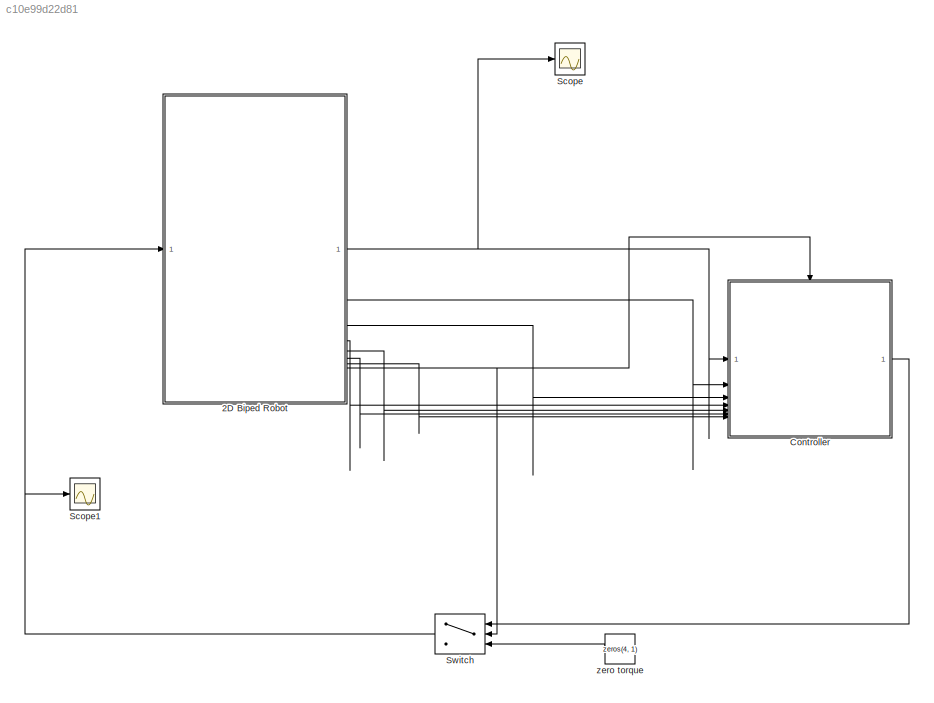
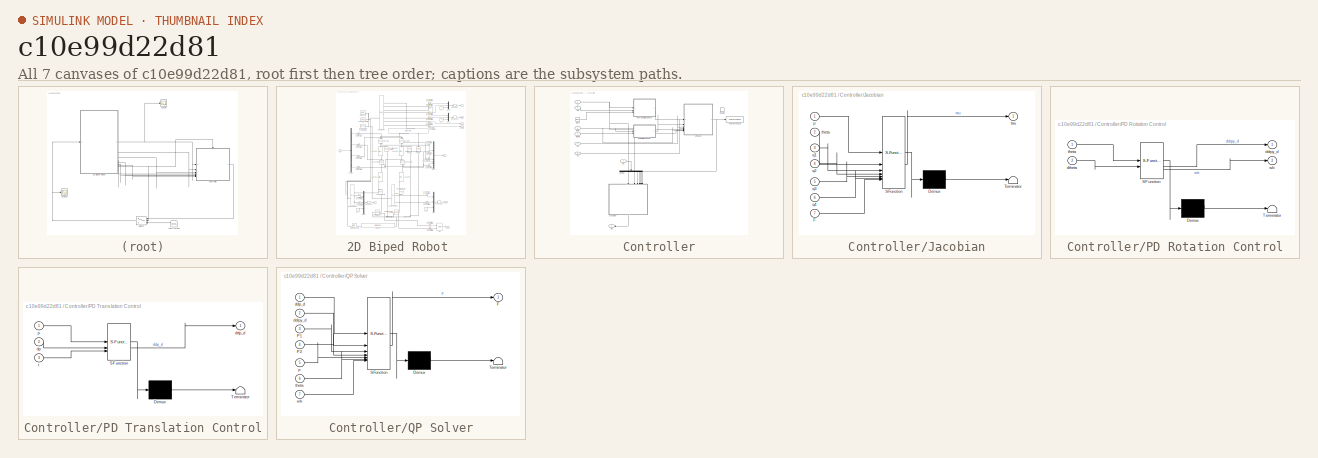
[diagram: thumbnail index - all 7 canvases of the model, root first then tree order]
MODEL slx_c10e99d22d81
KIND model
CONFIG AbsTol = 1e-3
CONFIG EnableMultiTasking = off
CONFIG FixedStep = 0.0005
CONFIG InitFcn = global params;\n\n% Mass and geometry\nparams.m = 0.25;\nparams.l = 0.22;\nparams.mb = 8;\nparams.a = 0.25;\nparams.b = 0.15;\nparams.g = [0; 9.81; 0];\n\n% Moment of inerita\nIl_zz = params.m * params.l^2 / 12;\nIb_xx = params.mb * params.a^2 / 12;\nIb_yy = params.mb * params.b^2 / 12;\nIb_zz = params.mb * (params.a^2 + params.b^2) / 12;\nparams.Ib = diag([Ib_xx Ib_yy Ib_zz]);\n\n% Spatial contact force parameter...<+337ch>
CONFIG MaxStep = auto
CONFIG MinStep = auto
CONFIG RelTol = 1e-3
CONFIG SampleTimeConstraint = Unconstrained
CONFIG SolverName = VariableStepAuto
CONFIG StartTime = 0.0
CONFIG StopTime = 0.5
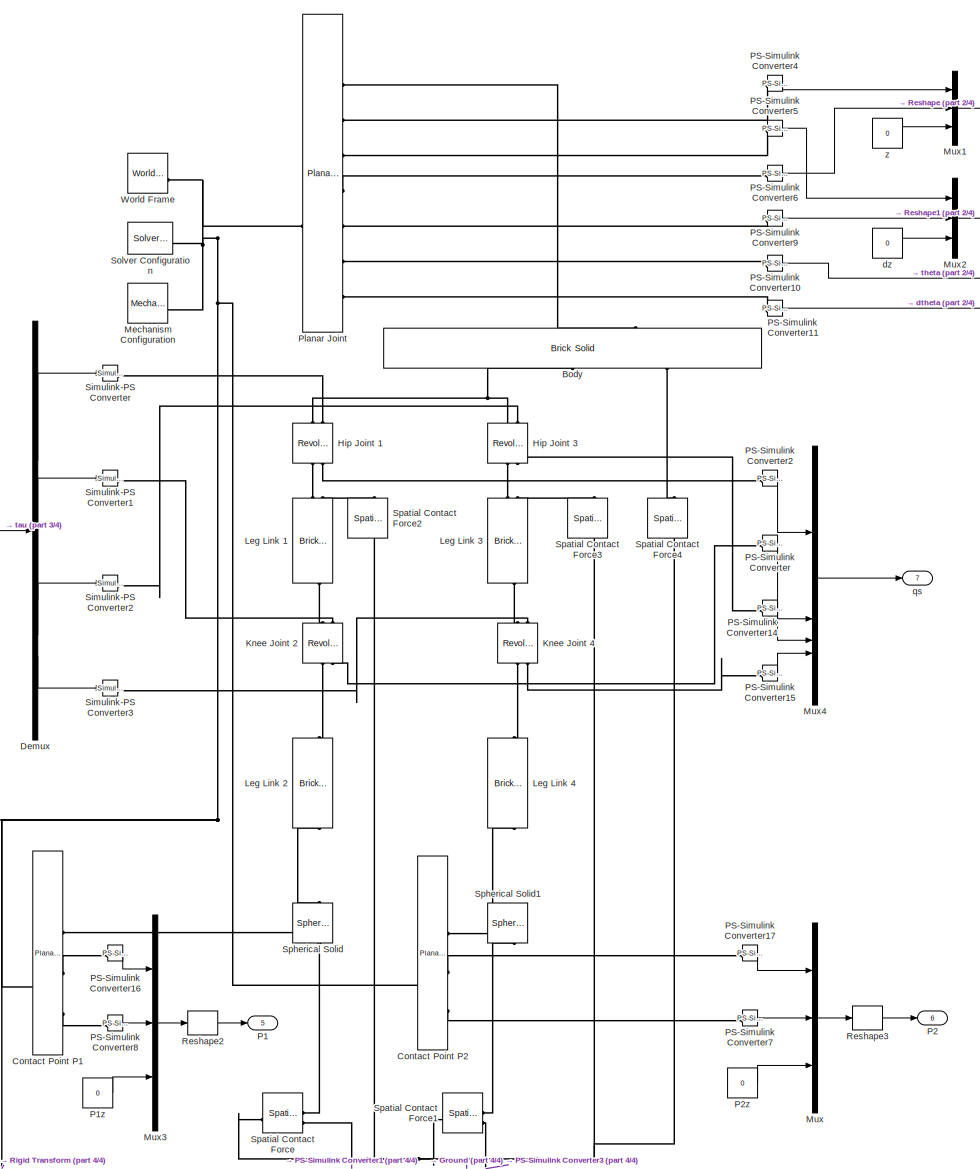
[diagram: 2D Biped Robot  - part 1/4, most of the canvas]
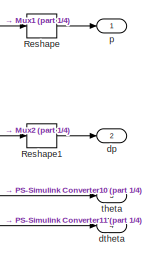
[diagram: 2D Biped Robot  - part 2/4, top right region]
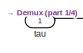
[diagram: 2D Biped Robot  - part 3/4, middle left region]
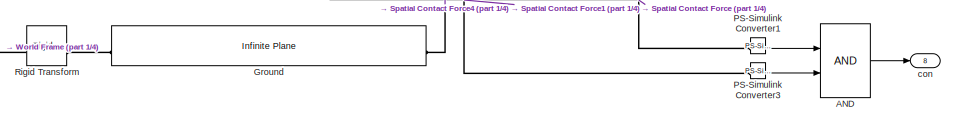
[diagram: 2D Biped Robot  - part 4/4, full width, bottom band]
BLOCK [SubSystem] 2D Biped Robot 
BLOCK [Logic] 2D Biped Robot /AND
  AllPortsSameDT = off
  IconShape = distinctive
  OutDataTypeStr = boolean
BLOCK [Reference] 2D Biped Robot /Body  REF=sm_lib/Body Elements/Brick Solid
  NameLocation = right
  SourceBlock = sm_lib/Body Elements/Brick Solid
  SourceType = Brick Solid
BLOCK [Reference] 2D Biped Robot /Contact Point P1  REF=sm_lib/Joints/Planar Joint
  SourceBlock = sm_lib/Joints/Planar Joint
  SourceType = Planar Joint
BLOCK [Reference] 2D Biped Robot /Contact Point P2  REF=sm_lib/Joints/Planar Joint
  SourceBlock = sm_lib/Joints/Planar Joint
  SourceType = Planar Joint
BLOCK [Demux] 2D Biped Robot /Demux
BLOCK [Reference] 2D Biped Robot /Ground  REF=sm_lib/Curves and Surfaces/Infinite Plane
  SourceBlock = sm_lib/Curves and Surfaces/Infinite Plane
  SourceType = Infinite Plane
BLOCK [Reference] 2D Biped Robot /Hip Joint 1  REF=sm_lib/Joints/Revolute Joint
  NameLocation = left
  SourceBlock = sm_lib/Joints/Revolute Joint
  SourceType = Revolute Joint
BLOCK [Reference] 2D Biped Robot /Hip Joint 3  REF=sm_lib/Joints/Revolute Joint
  NameLocation = left
  SourceBlock = sm_lib/Joints/Revolute Joint
  SourceType = Revolute Joint
BLOCK [Reference] 2D Biped Robot /Knee Joint 2  REF=sm_lib/Joints/Revolute Joint
  NameLocation = left
  SourceBlock = sm_lib/Joints/Revolute Joint
  SourceType = Revolute Joint
BLOCK [Reference] 2D Biped Robot /Knee Joint 4  REF=sm_lib/Joints/Revolute Joint
  NameLocation = left
  SourceBlock = sm_lib/Joints/Revolute Joint
  SourceType = Revolute Joint
BLOCK [Reference] 2D Biped Robot /Leg Link 1  REF=sm_lib/Body Elements/Brick Solid
  NameLocation = left
  SourceBlock = sm_lib/Body Elements/Brick Solid
  SourceType = Brick Solid
BLOCK [Reference] 2D Biped Robot /Leg Link 2  REF=sm_lib/Body Elements/Brick Solid
  NameLocation = left
  SourceBlock = sm_lib/Body Elements/Brick Solid
  SourceType = Brick Solid
BLOCK [Reference] 2D Biped Robot /Leg Link 3  REF=sm_lib/Body Elements/Brick Solid
  NameLocation = left
  SourceBlock = sm_lib/Body Elements/Brick Solid
  SourceType = Brick Solid
BLOCK [Reference] 2D Biped Robot /Leg Link 4  REF=sm_lib/Body Elements/Brick Solid
  NameLocation = left
  SourceBlock = sm_lib/Body Elements/Brick Solid
  SourceType = Brick Solid
BLOCK [Reference] 2D Biped Robot /Mechanism Configuration  REF=sm_lib/Utilities/Mechanism
Configuration
  SourceBlock = sm_lib/Utilities/Mechanism\nConfiguration
  SourceType = Mechanism\nConfiguration
BLOCK [Mux] 2D Biped Robot /Mux
  DisplayOption = bar
  Inputs = 3
BLOCK [Mux] 2D Biped Robot /Mux1
  DisplayOption = bar
  Inputs = 3
BLOCK [Mux] 2D Biped Robot /Mux2
  DisplayOption = bar
  Inputs = 3
BLOCK [Mux] 2D Biped Robot /Mux3
  DisplayOption = bar
  Inputs = 3
BLOCK [Mux] 2D Biped Robot /Mux4
  DisplayOption = bar
BLOCK [Outport] 2D Biped Robot /P1
  Port = 5
BLOCK [Constant] 2D Biped Robot /P1z
  Value = 0
BLOCK [Outport] 2D Biped Robot /P2
  Port = 6
BLOCK [Constant] 2D Biped Robot /P2z
  Value = 0
BLOCK [Reference] 2D Biped Robot /PS-Simulink Converter  REF=nesl_utility/PS-Simulink
Converter
  SourceBlock = nesl_utility/PS-Simulink\nConverter
  SourceType = PS-Simulink\nConverter
BLOCK [Reference] 2D Biped Robot /PS-Simulink Converter1  REF=nesl_utility/PS-Simulink
Converter
  SourceBlock = nesl_utility/PS-Simulink\nConverter
  SourceType = PS-Simulink\nConverter
BLOCK [Reference] 2D Biped Robot /PS-Simulink Converter10  REF=nesl_utility/PS-Simulink
Converter
  SourceBlock = nesl_utility/PS-Simulink\nConverter
  SourceType = PS-Simulink\nConverter
BLOCK [Reference] 2D Biped Robot /PS-Simulink Converter11  REF=nesl_utility/PS-Simulink
Converter
  SourceBlock = nesl_utility/PS-Simulink\nConverter
  SourceType = PS-Simulink\nConverter
BLOCK [Reference] 2D Biped Robot /PS-Simulink Converter14  REF=nesl_utility/PS-Simulink
Converter
  SourceBlock = nesl_utility/PS-Simulink\nConverter
  SourceType = PS-Simulink\nConverter
BLOCK [Reference] 2D Biped Robot /PS-Simulink Converter15  REF=nesl_utility/PS-Simulink
Converter
  SourceBlock = nesl_utility/PS-Simulink\nConverter
  SourceType = PS-Simulink\nConverter
BLOCK [Reference] 2D Biped Robot /PS-Simulink Converter16  REF=nesl_utility/PS-Simulink
Converter
  SourceBlock = nesl_utility/PS-Simulink\nConverter
  SourceType = PS-Simulink\nConverter
BLOCK [Reference] 2D Biped Robot /PS-Simulink Converter17  REF=nesl_utility/PS-Simulink
Converter
  SourceBlock = nesl_utility/PS-Simulink\nConverter
  SourceType = PS-Simulink\nConverter
BLOCK [Reference] 2D Biped Robot /PS-Simulink Converter2  REF=nesl_utility/PS-Simulink
Converter
  SourceBlock = nesl_utility/PS-Simulink\nConverter
  SourceType = PS-Simulink\nConverter
BLOCK [Reference] 2D Biped Robot /PS-Simulink Converter3  REF=nesl_utility/PS-Simulink
Converter
  SourceBlock = nesl_utility/PS-Simulink\nConverter
  SourceType = PS-Simulink\nConverter
BLOCK [Reference] 2D Biped Robot /PS-Simulink Converter4  REF=nesl_utility/PS-Simulink
Converter
  SourceBlock = nesl_utility/PS-Simulink\nConverter
  SourceType = PS-Simulink\nConverter
BLOCK [Reference] 2D Biped Robot /PS-Simulink Converter5  REF=nesl_utility/PS-Simulink
Converter
  SourceBlock = nesl_utility/PS-Simulink\nConverter
  SourceType = PS-Simulink\nConverter
BLOCK [Reference] 2D Biped Robot /PS-Simulink Converter6  REF=nesl_utility/PS-Simulink
Converter
  SourceBlock = nesl_utility/PS-Simulink\nConverter
  SourceType = PS-Simulink\nConverter
BLOCK [Reference] 2D Biped Robot /PS-Simulink Converter7  REF=nesl_utility/PS-Simulink
Converter
  SourceBlock = nesl_utility/PS-Simulink\nConverter
  SourceType = PS-Simulink\nConverter
BLOCK [Reference] 2D Biped Robot /PS-Simulink Converter8  REF=nesl_utility/PS-Simulink
Converter
  SourceBlock = nesl_utility/PS-Simulink\nConverter
  SourceType = PS-Simulink\nConverter
BLOCK [Reference] 2D Biped Robot /PS-Simulink Converter9  REF=nesl_utility/PS-Simulink
Converter
  SourceBlock = nesl_utility/PS-Simulink\nConverter
  SourceType = PS-Simulink\nConverter
BLOCK [Reference] 2D Biped Robot /Planar Joint  REF=sm_lib/Joints/Planar Joint
  SourceBlock = sm_lib/Joints/Planar Joint
  SourceType = Planar Joint
BLOCK [Reshape] 2D Biped Robot /Reshape
  OutputDimensionality = Customize
  OutputDimensions = [3,1]
BLOCK [Reshape] 2D Biped Robot /Reshape1
  OutputDimensionality = Customize
  OutputDimensions = [3,1]
BLOCK [Reshape] 2D Biped Robot /Reshape2
  OutputDimensionality = Customize
  OutputDimensions = [3,1]
BLOCK [Reshape] 2D Biped Robot /Reshape3
  OutputDimensionality = Customize
  OutputDimensions = [3,1]
BLOCK [Reference] 2D Biped Robot /Rigid Transform  REF=sm_lib/Frames and
Transforms/Rigid
Transform
  SourceBlock = sm_lib/Frames and\nTransforms/Rigid\nTransform
  SourceType = Rigid\nTransform
BLOCK [Reference] 2D Biped Robot /Simulink-PS Converter  REF=nesl_utility/Simulink-PS
Converter
  SourceBlock = nesl_utility/Simulink-PS\nConverter
  SourceType = Simulink-PS\nConverter
BLOCK [Reference] 2D Biped Robot /Simulink-PS Converter1  REF=nesl_utility/Simulink-PS
Converter
  SourceBlock = nesl_utility/Simulink-PS\nConverter
  SourceType = Simulink-PS\nConverter
BLOCK [Reference] 2D Biped Robot /Simulink-PS Converter2  REF=nesl_utility/Simulink-PS
Converter
  SourceBlock = nesl_utility/Simulink-PS\nConverter
  SourceType = Simulink-PS\nConverter
BLOCK [Reference] 2D Biped Robot /Simulink-PS Converter3  REF=nesl_utility/Simulink-PS
Converter
  SourceBlock = nesl_utility/Simulink-PS\nConverter
  SourceType = Simulink-PS\nConverter
BLOCK [Reference] 2D Biped Robot /Solver Configuration  REF=nesl_utility/Solver
Configuration
  SourceBlock = nesl_utility/Solver\nConfiguration
  SourceType = Solver\nConfiguration
BLOCK [Reference] 2D Biped Robot /Spatial Contact Force  REF=sm_lib/Forces and
Torques/Spatial
Contact Force
  SourceBlock = sm_lib/Forces and\nTorques/Spatial\nContact Force
  SourceType = Spatial\nContact Force
BLOCK [Reference] 2D Biped Robot /Spatial Contact Force1  REF=sm_lib/Forces and
Torques/Spatial
Contact Force
  SourceBlock = sm_lib/Forces and\nTorques/Spatial\nContact Force
  SourceType = Spatial\nContact Force
BLOCK [Reference] 2D Biped Robot /Spatial Contact Force2  REF=sm_lib/Forces and
Torques/Spatial
Contact Force
  NameLocation = right
  SourceBlock = sm_lib/Forces and\nTorques/Spatial\nContact Force
  SourceType = Spatial\nContact Force
BLOCK [Reference] 2D Biped Robot /Spatial Contact Force3  REF=sm_lib/Forces and
Torques/Spatial
Contact Force
  NameLocation = right
  SourceBlock = sm_lib/Forces and\nTorques/Spatial\nContact Force
  SourceType = Spatial\nContact Force
BLOCK [Reference] 2D Biped Robot /Spatial Contact Force4  REF=sm_lib/Forces and
Torques/Spatial
Contact Force
  NameLocation = right
  SourceBlock = sm_lib/Forces and\nTorques/Spatial\nContact Force
  SourceType = Spatial\nContact Force
BLOCK [Reference] 2D Biped Robot /Spherical Solid  REF=sm_lib/Body Elements/Spherical Solid
  NameLocation = right
  SourceBlock = sm_lib/Body Elements/Spherical Solid
  SourceType = Spherical Solid
BLOCK [Reference] 2D Biped Robot /Spherical Solid1  REF=sm_lib/Body Elements/Spherical Solid
  NameLocation = right
  SourceBlock = sm_lib/Body Elements/Spherical Solid
  SourceType = Spherical Solid
BLOCK [Reference] 2D Biped Robot /World Frame  REF=sm_lib/Frames and
Transforms/World Frame
  SourceBlock = sm_lib/Frames and\nTransforms/World Frame
  SourceType = World Frame
BLOCK [Outport] 2D Biped Robot /con
  Port = 8
BLOCK [Outport] 2D Biped Robot /dp
  Port = 2
BLOCK [Outport] 2D Biped Robot /dtheta
  Port = 4
BLOCK [Constant] 2D Biped Robot /dz
  Value = 0
BLOCK [Outport] 2D Biped Robot /p
BLOCK [Outport] 2D Biped Robot /qs
  Port = 7
BLOCK [Inport] 2D Biped Robot /tau
BLOCK [Outport] 2D Biped Robot /theta
  Port = 3
BLOCK [Constant] 2D Biped Robot /z
  Value = 0
BLOCK [SubSystem] Controller
BLOCK [Clock] Controller/Clock
BLOCK [Demux] Controller/Demux
  NameLocation = left
BLOCK [EnablePort] Controller/Enable
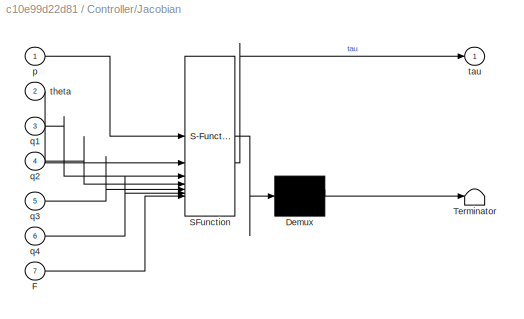
BLOCK [SubSystem] Controller/Jacobian
  ErrorFcn = Stateflow.Translate.translate
  NameLocation = left
  PermitHierarchicalResolution = ExplicitOnly
  SFBlockType = MATLAB Function
  TreatAsAtomicUnit = on
BLOCK [Demux] Controller/Jacobian/ Demux 
  Outputs = 1
BLOCK [S-Function] Controller/Jacobian/ SFunction 
  EnableBusSupport = on
  FunctionName = sf_sfun
  PortCounts = [7 2]
  SFcnIsStateOwnerBlock = off
  SFunctionDeploymentMode = off
  Tag = Stateflow S-Function 5
BLOCK [Terminator] Controller/Jacobian/ Terminator 
BLOCK [Inport] Controller/Jacobian/F
  Port = 7
BLOCK [Inport] Controller/Jacobian/p
BLOCK [Inport] Controller/Jacobian/q1
  Port = 3
BLOCK [Inport] Controller/Jacobian/q2
  Port = 4
BLOCK [Inport] Controller/Jacobian/q3
  Port = 5
BLOCK [Inport] Controller/Jacobian/q4
  Port = 6
BLOCK [Outport] Controller/Jacobian/tau
BLOCK [Inport] Controller/Jacobian/theta
  Port = 2
BLOCK [Inport] Controller/P1
  Port = 5
BLOCK [Inport] Controller/P2
  Port = 6
BLOCK [SubSystem] Controller/PD Rotation Control
  ErrorFcn = Stateflow.Translate.translate
  PermitHierarchicalResolution = ExplicitOnly
  SFBlockType = MATLAB Function
  TreatAsAtomicUnit = on
BLOCK [Demux] Controller/PD Rotation Control/ Demux 
  Outputs = 1
BLOCK [S-Function] Controller/PD Rotation Control/ SFunction 
  EnableBusSupport = on
  FunctionName = sf_sfun
  PortCounts = [2 3]
  SFcnIsStateOwnerBlock = off
  SFunctionDeploymentMode = off
  Tag = Stateflow S-Function 1
BLOCK [Terminator] Controller/PD Rotation Control/ Terminator 
BLOCK [Outport] Controller/PD Rotation Control/ddrpy_d
BLOCK [Inport] Controller/PD Rotation Control/dtheta
  Port = 2
BLOCK [Inport] Controller/PD Rotation Control/theta
BLOCK [Outport] Controller/PD Rotation Control/wb
  Port = 2
BLOCK [SubSystem] Controller/PD Translation Control
  ErrorFcn = Stateflow.Translate.translate
  PermitHierarchicalResolution = ExplicitOnly
  SFBlockType = MATLAB Function
  TreatAsAtomicUnit = on
BLOCK [Demux] Controller/PD Translation Control/ Demux 
  Outputs = 1
BLOCK [S-Function] Controller/PD Translation Control/ SFunction 
  EnableBusSupport = on
  FunctionName = sf_sfun
  PortCounts = [3 2]
  SFcnIsStateOwnerBlock = off
  SFunctionDeploymentMode = off
  Tag = Stateflow S-Function 6
BLOCK [Terminator] Controller/PD Translation Control/ Terminator 
BLOCK [Outport] Controller/PD Translation Control/ddp_d
BLOCK [Inport] Controller/PD Translation Control/dp
  Port = 2
BLOCK [Inport] Controller/PD Translation Control/p
BLOCK [Inport] Controller/PD Translation Control/t
  Port = 3
BLOCK [SubSystem] Controller/QP Solver
  ErrorFcn = Stateflow.Translate.translate
  PermitHierarchicalResolution = ExplicitOnly
  SFBlockType = MATLAB Function
  TreatAsAtomicUnit = on
BLOCK [Demux] Controller/QP Solver/ Demux 
  Outputs = 1
BLOCK [S-Function] Controller/QP Solver/ SFunction 
  EnableBusSupport = on
  FunctionName = sf_sfun
  PortCounts = [7 2]
  SFcnIsStateOwnerBlock = off
  SFunctionDeploymentMode = off
  Tag = Stateflow S-Function 3
BLOCK [Terminator] Controller/QP Solver/ Terminator 
BLOCK [Outport] Controller/QP Solver/F
BLOCK [Inport] Controller/QP Solver/P1
  Port = 3
BLOCK [Inport] Controller/QP Solver/P2
  Port = 4
BLOCK [Inport] Controller/QP Solver/ddp_d
BLOCK [Inport] Controller/QP Solver/ddrpy_d
  Port = 2
BLOCK [Inport] Controller/QP Solver/p
  Port = 5
BLOCK [Inport] Controller/QP Solver/theta
  Port = 6
BLOCK [Inport] Controller/QP Solver/wb
  Port = 7
BLOCK [ToWorkspace] Controller/To Workspace
  FixptAsFi = on
  MaxDataPoints = inf
  SampleTime = -1
  SaveFormat = Timeseries
  VariableName = F
BLOCK [Inport] Controller/dp
  Port = 2
BLOCK [Inport] Controller/dtheta
  Port = 4
BLOCK [Inport] Controller/p
BLOCK [Inport] Controller/qs
  Port = 7
BLOCK [Outport] Controller/tau
  NameLocation = top
BLOCK [Inport] Controller/theta
  Port = 3
BLOCK [Scope] Scope
  Floating = off
  NumInputPorts = 1
  ScopeSpecificationString = Simulink.scopes.TimeScopeBlockCfg('CurrentConfiguration', extmgr.ConfigurationSet(extmgr.Configuration('Core','General UI',true),extmgr.Configuration('Core','Source UI',true),extmgr.Configuration('Sources','WiredSimulink',true,'DataLoggingVariableName','ScopeData1'),extmgr.Configuration('Visuals','Time Domain',true,'SerializedDisplays',{struct('MinYLimReal','0','MaxYLimReal','0.6','YLabelReal','',...<+1486ch>
BLOCK [Scope] Scope1
  Floating = off
  NumInputPorts = 1
  ScopeSpecificationString = Simulink.scopes.TimeScopeBlockCfg('CurrentConfiguration', extmgr.ConfigurationSet(extmgr.Configuration('Core','General UI',true),extmgr.Configuration('Core','Source UI',true),extmgr.Configuration('Sources','WiredSimulink',true,'DataLoggingVariableName','ScopeData1'),extmgr.Configuration('Visuals','Time Domain',true,'SerializedDisplays',{struct('MinYLimReal','-153.71109','MaxYLimReal','97.60064','Y...<+1663ch>
BLOCK [Switch] Switch
  Criteria = u2 ~= 0
  InputSameDT = off
  NameLocation = top
  SaturateOnIntegerOverflow = off
BLOCK [Constant] zero torque
  NameLocation = top
  Value = zeros(4, 1)
LINE 2D Biped Robot /AND:1 -> 2D Biped Robot /con:1
LINE 2D Biped Robot /Demux:1 -> 2D Biped Robot /Simulink-PS Converter:1
LINE 2D Biped Robot /Demux:2 -> 2D Biped Robot /Simulink-PS Converter1:1
LINE 2D Biped Robot /Demux:3 -> 2D Biped Robot /Simulink-PS Converter2:1
LINE 2D Biped Robot /Demux:4 -> 2D Biped Robot /Simulink-PS Converter3:1
LINE 2D Biped Robot /Mux1:1 -> 2D Biped Robot /Reshape:1
LINE 2D Biped Robot /Mux2:1 -> 2D Biped Robot /Reshape1:1
LINE 2D Biped Robot /Mux3:1 -> 2D Biped Robot /Reshape2:1
LINE 2D Biped Robot /Mux4:1 -> 2D Biped Robot /qs:1
LINE 2D Biped Robot /Mux:1 -> 2D Biped Robot /Reshape3:1
LINE 2D Biped Robot /P1z:1 -> 2D Biped Robot /Mux3:3
LINE 2D Biped Robot /P2z:1 -> 2D Biped Robot /Mux:3
LINE 2D Biped Robot /PS-Simulink Converter10:1 -> 2D Biped Robot /theta:1
LINE 2D Biped Robot /PS-Simulink Converter11:1 -> 2D Biped Robot /dtheta:1
LINE 2D Biped Robot /PS-Simulink Converter14:1 -> 2D Biped Robot /Mux4:3
LINE 2D Biped Robot /PS-Simulink Converter15:1 -> 2D Biped Robot /Mux4:4
LINE 2D Biped Robot /PS-Simulink Converter16:1 -> 2D Biped Robot /Mux3:1
LINE 2D Biped Robot /PS-Simulink Converter17:1 -> 2D Biped Robot /Mux:1
LINE 2D Biped Robot /PS-Simulink Converter1:1 -> 2D Biped Robot /AND:1
LINE 2D Biped Robot /PS-Simulink Converter2:1 -> 2D Biped Robot /Mux4:1
LINE 2D Biped Robot /PS-Simulink Converter3:1 -> 2D Biped Robot /AND:2
LINE 2D Biped Robot /PS-Simulink Converter4:1 -> 2D Biped Robot /Mux1:1
LINE 2D Biped Robot /PS-Simulink Converter5:1 -> 2D Biped Robot /Mux2:1
LINE 2D Biped Robot /PS-Simulink Converter6:1 -> 2D Biped Robot /Mux1:2
LINE 2D Biped Robot /PS-Simulink Converter7:1 -> 2D Biped Robot /Mux:2
LINE 2D Biped Robot /PS-Simulink Converter8:1 -> 2D Biped Robot /Mux3:2
LINE 2D Biped Robot /PS-Simulink Converter9:1 -> 2D Biped Robot /Mux2:2
LINE 2D Biped Robot /PS-Simulink Converter:1 -> 2D Biped Robot /Mux4:2
LINE 2D Biped Robot /Reshape1:1 -> 2D Biped Robot /dp:1
LINE 2D Biped Robot /Reshape2:1 -> 2D Biped Robot /P1:1
LINE 2D Biped Robot /Reshape3:1 -> 2D Biped Robot /P2:1
LINE 2D Biped Robot /Reshape:1 -> 2D Biped Robot /p:1
LINE 2D Biped Robot /dz:1 -> 2D Biped Robot /Mux2:3
LINE 2D Biped Robot /tau:1 -> 2D Biped Robot /Demux:1
LINE 2D Biped Robot /z:1 -> 2D Biped Robot /Mux1:3
NET 2D Biped Robot :1 -> Controller:1, Scope:1
LINE 2D Biped Robot :2 -> Controller:2
LINE 2D Biped Robot :3 -> Controller:3
LINE 2D Biped Robot :4 -> Controller:4
LINE 2D Biped Robot :5 -> Controller:5
LINE 2D Biped Robot :6 -> Controller:6
LINE 2D Biped Robot :7 -> Controller:7
NET 2D Biped Robot :8 -> Controller:enable, Switch:2
LINE Controller/Clock:1 -> Controller/PD Translation Control:3
LINE Controller/Demux:1 -> Controller/Jacobian:3
LINE Controller/Demux:2 -> Controller/Jacobian:4
LINE Controller/Demux:3 -> Controller/Jacobian:5
LINE Controller/Demux:4 -> Controller/Jacobian:6
LINE Controller/Jacobian:1 -> Controller/tau:1
LINE Controller/P1:1 -> Controller/QP Solver:3
LINE Controller/P2:1 -> Controller/QP Solver:4
LINE Controller/PD Rotation Control:1 -> Controller/QP Solver:2
LINE Controller/PD Rotation Control:2 -> Controller/QP Solver:7
LINE Controller/PD Translation Control:1 -> Controller/QP Solver:1
NET Controller/QP Solver:1 -> Controller/Jacobian:7, Controller/To Workspace:1
LINE Controller/dp:1 -> Controller/PD Translation Control:2
LINE Controller/dtheta:1 -> Controller/PD Rotation Control:2
NET Controller/p:1 -> Controller/Jacobian:1, Controller/PD Translation Control:1, Controller/QP Solver:5
LINE Controller/qs:1 -> Controller/Demux:1
NET Controller/theta:1 -> Controller/Jacobian:2, Controller/PD Rotation Control:1, Controller/QP Solver:6
LINE Controller:1 -> Switch:1
NET Switch:1 -> 2D Biped Robot :1, Scope1:1
LINE zero torque:1 -> Switch:3
PNET net1: 2D Biped Robot /Body:LConn1 -- 2D Biped Robot /Hip Joint 1:LConn1 -- 2D Biped Robot /Hip Joint 3:LConn1
PLINE 2D Biped Robot /Body:LConn2 -- 2D Biped Robot /Spatial Contact Force4:RConn1
PLINE 2D Biped Robot /Body:RConn1 -- 2D Biped Robot /Planar Joint:RConn1
PNET net2: 2D Biped Robot /Contact Point P1:LConn1 -- 2D Biped Robot /Contact Point P2:LConn1 -- 2D Biped Robot /Mechanism Configuration:RConn1 -- 2D Biped Robot /Planar Joint:LConn1 -- 2D Biped Robot /Rigid Transform:LConn1 -- 2D Biped Robot /Solver Configuration:RConn1 -- 2D Biped Robot /World Frame:RConn1
PNET net3: 2D Biped Robot /Contact Point P1:RConn1 -- 2D Biped Robot /Leg Link 2:RConn1 -- 2D Biped Robot /Spherical Solid:RConn1
PLINE 2D Biped Robot /Contact Point P1:RConn2 -- 2D Biped Robot /PS-Simulink Converter16:LConn1
PLINE 2D Biped Robot /Contact Point P1:RConn3 -- 2D Biped Robot /PS-Simulink Converter8:LConn1
PNET net4: 2D Biped Robot /Contact Point P2:RConn1 -- 2D Biped Robot /Leg Link 4:RConn1 -- 2D Biped Robot /Spherical Solid1:RConn1
PLINE 2D Biped Robot /Contact Point P2:RConn2 -- 2D Biped Robot /PS-Simulink Converter17:LConn1
PLINE 2D Biped Robot /Contact Point P2:RConn3 -- 2D Biped Robot /PS-Simulink Converter7:LConn1
PLINE 2D Biped Robot /Ground:LConn1 -- 2D Biped Robot /Rigid Transform:RConn1
PNET net5: 2D Biped Robot /Ground:RConn1 -- 2D Biped Robot /Spatial Contact Force1:LConn1 -- 2D Biped Robot /Spatial Contact Force2:LConn1 -- 2D Biped Robot /Spatial Contact Force3:LConn1 -- 2D Biped Robot /Spatial Contact Force4:LConn1 -- 2D Biped Robot /Spatial Contact Force:LConn1
PLINE 2D Biped Robot /Hip Joint 1:LConn2 -- 2D Biped Robot /Simulink-PS Converter:RConn1
PLINE 2D Biped Robot /Hip Joint 1:RConn1 -- 2D Biped Robot /Leg Link 1:LConn1
PLINE 2D Biped Robot /Hip Joint 1:RConn2 -- 2D Biped Robot /PS-Simulink Converter2:LConn1
PLINE 2D Biped Robot /Hip Joint 3:LConn2 -- 2D Biped Robot /Simulink-PS Converter2:RConn1
PLINE 2D Biped Robot /Hip Joint 3:RConn1 -- 2D Biped Robot /Leg Link 3:LConn1
PLINE 2D Biped Robot /Hip Joint 3:RConn2 -- 2D Biped Robot /PS-Simulink Converter14:LConn1
PLINE 2D Biped Robot /Knee Joint 2:LConn1 -- 2D Biped Robot /Leg Link 1:RConn1
PLINE 2D Biped Robot /Knee Joint 2:LConn2 -- 2D Biped Robot /Simulink-PS Converter1:RConn1
PLINE 2D Biped Robot /Knee Joint 2:RConn1 -- 2D Biped Robot /Leg Link 2:LConn1
PLINE 2D Biped Robot /Knee Joint 2:RConn2 -- 2D Biped Robot /PS-Simulink Converter:LConn1
PLINE 2D Biped Robot /Knee Joint 4:LConn1 -- 2D Biped Robot /Leg Link 3:RConn1
PLINE 2D Biped Robot /Knee Joint 4:LConn2 -- 2D Biped Robot /Simulink-PS Converter3:RConn1
PLINE 2D Biped Robot /Knee Joint 4:RConn1 -- 2D Biped Robot /Leg Link 4:LConn1
PLINE 2D Biped Robot /Knee Joint 4:RConn2 -- 2D Biped Robot /PS-Simulink Converter15:LConn1
PLINE 2D Biped Robot /Leg Link 1:LConn2 -- 2D Biped Robot /Spatial Contact Force2:RConn1
PLINE 2D Biped Robot /Leg Link 3:LConn2 -- 2D Biped Robot /Spatial Contact Force3:RConn1
PLINE 2D Biped Robot /PS-Simulink Converter10:LConn1 -- 2D Biped Robot /Planar Joint:RConn6
PLINE 2D Biped Robot /PS-Simulink Converter11:LConn1 -- 2D Biped Robot /Planar Joint:RConn7
PLINE 2D Biped Robot /PS-Simulink Converter1:LConn1 -- 2D Biped Robot /Spatial Contact Force:RConn2
PLINE 2D Biped Robot /PS-Simulink Converter3:LConn1 -- 2D Biped Robot /Spatial Contact Force1:RConn2
PLINE 2D Biped Robot /PS-Simulink Converter4:LConn1 -- 2D Biped Robot /Planar Joint:RConn2
PLINE 2D Biped Robot /PS-Simulink Converter5:LConn1 -- 2D Biped Robot /Planar Joint:RConn3
PLINE 2D Biped Robot /PS-Simulink Converter6:LConn1 -- 2D Biped Robot /Planar Joint:RConn4
PLINE 2D Biped Robot /PS-Simulink Converter9:LConn1 -- 2D Biped Robot /Planar Joint:RConn5
PLINE 2D Biped Robot /Spatial Contact Force1:RConn1 -- 2D Biped Robot /Spherical Solid1:LConn1
PLINE 2D Biped Robot /Spatial Contact Force:RConn1 -- 2D Biped Robot /Spherical Solid:LConn1
note: NET lines group one-source signal fan-out (src -> all destinations, sorted); 1:1 wires keep LINE; PNET lines group multi-terminal physical nets as a canonical sorted terminal list (undirected conserving connections); 2-terminal nets keep the pairwise PLINE form
CHART Controller/PD Rotation Control states=1 transitions=1
  STATE_LABEL 'eML_blk_kernel()'
  STATE_LABEL "SCRIPT:\nfunction [ddrpy_d, wb] = PD_rot(theta, dtheta)\n\n% Desired rotation\ntheta_d = 0;\nR_d = eul2rotm([theta_d 0 0]);\n\n% Actual rotation\nR = eul2rotm([theta 0 0]);\n\n% Rotation error (R - R_d)\nR_e = R * R_d';\n\n% Euler angle error (eul - eul_d)\neul_e = rotm2eul(R_e);\nrpy_e = [eul_e(3); eul_e(2); eul_e(1)];\n\n% Angular velocity\nwb = [0; 0; dtheta];\n\n% Angular velocity error (wb - wb_d)\nwb_e = wb - [0...<+149ch>"
CHART Controller/QP Solver states=1 transitions=1
  STATE_LABEL 'eML_blk_kernel()'
  STATE_LABEL 'SCRIPT:\nfunction F = qp_controller(ddp_d, ddrpy_d, P1, P2, p, theta, wb)\n\n% Parameters\nmt = 8;\na = 0.25;\nb = 0.15;\ng = [0; 9.81; 0];\nIb_zz = mt * (a^2 + b^2) / 12;\nIb = diag([0 0 Ib_zz]);\n\n% Input propagation (A)\nr1 = P1 - p;\nr2 = P2 - p;\nsr1 = [     0 -r1(3)  r1(2);\n        r1(3)      0 -r1(1);\n       -r1(2)  r1(1)      0];\nsr2 = [     0 -r2(3)  r2(2);\n        r2(3)      0 -r2(1);\n       -r2(2)  ...<+924ch>'
CHART Controller/Jacobian states=1 transitions=1
  STATE_LABEL 'eML_blk_kernel()'
  STATE_LABEL 'SCRIPT:\nfunction tau = jacobian_fcn(p, theta, q1, q2, q3, q4, F)\n\nl = 0.22;\nx = p(1); y = p(2);\n\nJ = [l*cos(q1 + q2 + theta) + l*cos(q1 + theta), l*cos(q1 + q2 + theta),                                          0,                      0;\n     l*sin(q1 + q2 + theta) + l*sin(q1 + theta), l*sin(q1 + q2 + theta),                                          0,                      0;\n                     ...<+565ch>'
CHART Controller/PD Translation Control states=1 transitions=1
  STATE_LABEL 'eML_blk_kernel()'
  STATE_LABEL 'SCRIPT:\nfunction ddp_d = PD_trans(p, dp, t)\n\n% Desired position & velocity (depend on sim time)\nif t <= 0.5\n    p_d = [0; 0.55; 0];\n    dp_d = [0; 0; 0];\nelse\n    p_d = [0; 0.4; 0];\n    dp_d = [0; 0; 0];\nend\n\n% PD controllers\nKp_d = diag([2000 2000 0]); Kd_d = diag([250 250 0]);\n\n% Desired acceleration\nddp_d = -Kp_d * (p - p_d) - Kd_d * (dp - dp_d);\n\nend'
CHART  states=0 transitions=0
CHART  states=0 transitions=0
CHART  states=0 transitions=0
CHART  states=0 transitions=0
